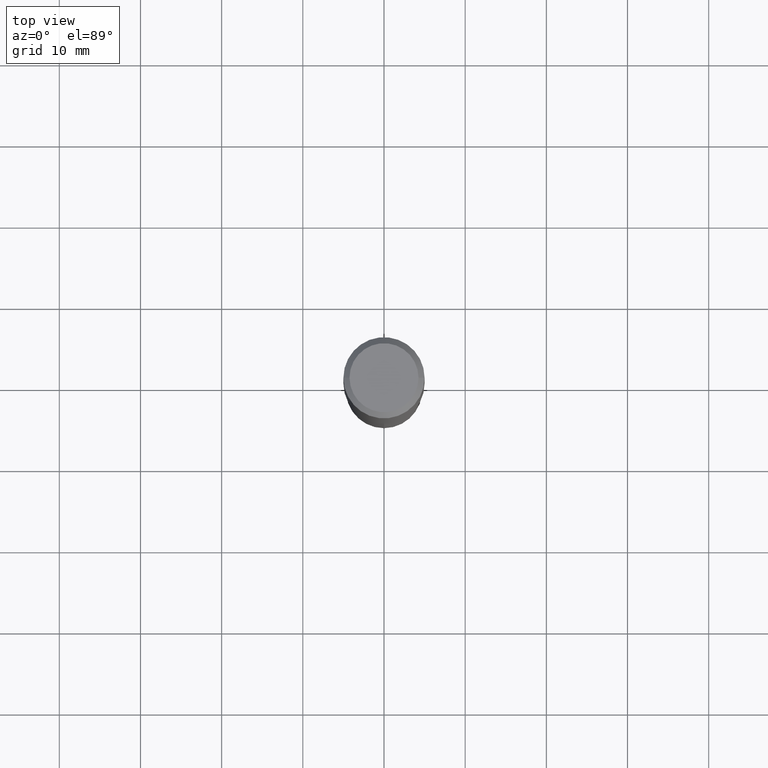
[diagram: clean part render]
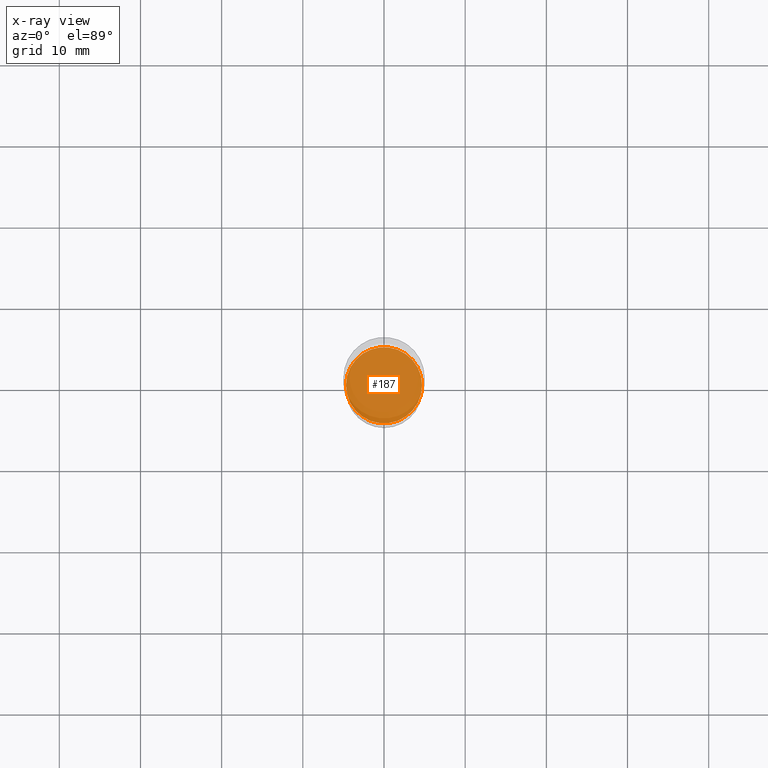
[diagram: x-ray — body ghosted, one internal face saturated and labeled with its STEP entity id]
A machine part, top view, then the same camera in x-ray: the body is ghosted and one INTERNAL B-rep face — a face not visible from any outside direction — is saturated and labeled: STEP entity #187.
In plain terms, the highlighted planar face has unit normal (-0, 0, 1).
Its self-contained STEP definition (entity closure, byte-faithful):
#10 = AXIS2_PLACEMENT_3D ( 'NONE', #311, #161, #31 ) ;
#28 = AXIS2_PLACEMENT_3D ( 'NONE', #36, #347, #486 ) ;
#31 = DIRECTION ( 'NONE',  ( 1.000000000000000000, -6.982962677686265922E-15, 0.000000000000000000 ) ) ;
#36 = CARTESIAN_POINT ( 'NONE',  ( 5.198822135068982087E-29, -7.422540178246643119E-15, -2.125899999999999679 ) ) ;
#71 = VERTEX_POINT ( 'NONE', #246 ) ;
#148 = FACE_OUTER_BOUND ( 'NONE', #231, .T. ) ;
#161 = DIRECTION ( 'NONE',  ( -2.445468806185136597E-29, 3.491481338843145583E-15, 1.000000000000000000 ) ) ;
#182 = PLANE ( 'NONE',  #353 ) ;
#187 = ADVANCED_FACE ( 'NONE', ( #148 ), #182, .F. ) ;
#231 = EDGE_LOOP ( 'NONE', ( #395, #320 ) ) ;
#235 = VERTEX_POINT ( 'NONE', #330 ) ;
#246 = CARTESIAN_POINT ( 'NONE',  ( -0.1845499999999999363, -6.108584332227267083E-15, -2.125899999999999679 ) ) ;
#301 = CARTESIAN_POINT ( 'NONE',  ( 5.198822135068982087E-29, -7.422540178246643119E-15, -2.125899999999999679 ) ) ;
#311 = CARTESIAN_POINT ( 'NONE',  ( 5.198822135068982087E-29, -7.422540178246643119E-15, -2.125899999999999679 ) ) ;
#320 = ORIENTED_EDGE ( 'NONE', *, *, #334, .F. ) ;
#330 = CARTESIAN_POINT ( 'NONE',  ( 0.1845499999999999363, -8.711245940413642018E-15, -2.125899999999999679 ) ) ;
#334 = EDGE_CURVE ( 'NONE', #71, #235, #444, .T. ) ;
#339 = CIRCLE ( 'NONE', #28, 0.1845499999999999363 ) ;
#347 = DIRECTION ( 'NONE',  ( -2.445468806185136597E-29, 3.491481338843145583E-15, 1.000000000000000000 ) ) ;
#353 = AXIS2_PLACEMENT_3D ( 'NONE', #301, #435, #364 ) ;
#364 = DIRECTION ( 'NONE',  ( 1.000000000000000000, -6.982962677686265922E-15, 4.876176775795935793E-29 ) ) ;
#395 = ORIENTED_EDGE ( 'NONE', *, *, #410, .F. ) ;
#410 = EDGE_CURVE ( 'NONE', #235, #71, #339, .T. ) ;
#435 = DIRECTION ( 'NONE',  ( -2.438088387897960049E-29, 3.491481338843145188E-15, 1.000000000000000000 ) ) ;
#444 = CIRCLE ( 'NONE', #10, 0.1845499999999999363 ) ;
#486 = DIRECTION ( 'NONE',  ( 1.000000000000000000, -6.982962677686265922E-15, 0.000000000000000000 ) ) ;